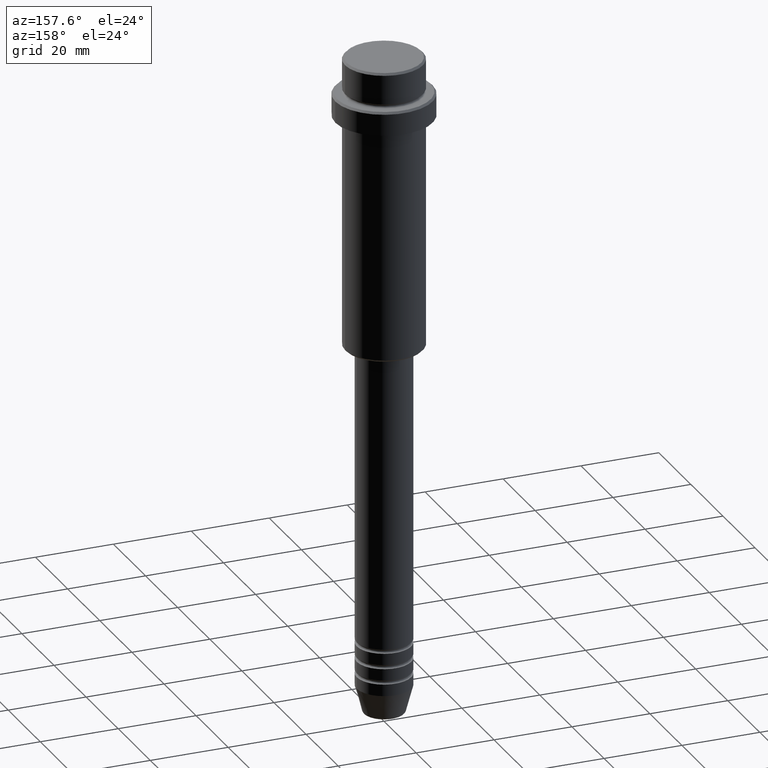
[diagram: clean part render]
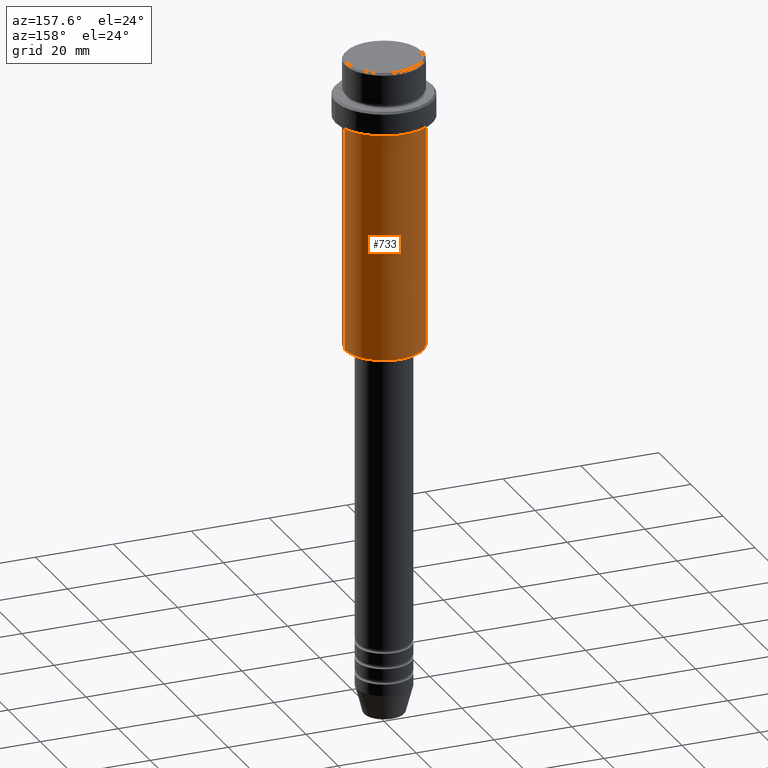
[diagram: same view with one face highlighted and labeled with its STEP entity id]
A machine part, auxiliary view. The second image highlights one B-rep face of the part: STEP entity #733.
In plain terms, the highlighted cylindrical surface (partial cylindrical patch) has radius 10 mm, axis along (-0, -0, 1).
Its self-contained STEP definition (entity closure, byte-faithful):
#65 = VERTEX_POINT ( 'NONE', #1335 ) ;
#96 = DIRECTION ( 'NONE',  ( 1.000000000000000000, 0.000000000000000000, 0.000000000000000000 ) ) ;
#112 = DIRECTION ( 'NONE',  ( 1.000000000000000000, 0.000000000000000000, 0.000000000000000000 ) ) ;
#139 = DIRECTION ( 'NONE',  ( -0.000000000000000000, -0.000000000000000000, 1.000000000000000000 ) ) ;
#174 = EDGE_CURVE ( 'NONE', #1343, #1163, #647, .T. ) ;
#216 = DIRECTION ( 'NONE',  ( -1.000000000000000000, 0.000000000000000000, 0.000000000000000000 ) ) ;
#247 = CARTESIAN_POINT ( 'NONE',  ( 9.999999999999998224, 0.000000000000000000, 0.000000000000000000 ) ) ;
#248 = ORIENTED_EDGE ( 'NONE', *, *, #1213, .F. ) ;
#275 = CARTESIAN_POINT ( 'NONE',  ( 0.000000000000000000, 0.000000000000000000, -16.00000000000000000 ) ) ;
#305 = AXIS2_PLACEMENT_3D ( 'NONE', #530, #1082, #112 ) ;
#325 = DIRECTION ( 'NONE',  ( -0.000000000000000000, -0.000000000000000000, 1.000000000000000000 ) ) ;
#333 = CIRCLE ( 'NONE', #448, 9.999999999999998224 ) ;
#348 = DIRECTION ( 'NONE',  ( -0.000000000000000000, -0.000000000000000000, 1.000000000000000000 ) ) ;
#383 = EDGE_CURVE ( 'NONE', #65, #1163, #869, .T. ) ;
#401 = DIRECTION ( 'NONE',  ( -0.000000000000000000, -0.000000000000000000, 1.000000000000000000 ) ) ;
#403 = VECTOR ( 'NONE', #139, 1000.000000000000000 ) ;
#421 = AXIS2_PLACEMENT_3D ( 'NONE', #275, #401, #96 ) ;
#443 = ORIENTED_EDGE ( 'NONE', *, *, #174, .F. ) ;
#448 = AXIS2_PLACEMENT_3D ( 'NONE', #723, #348, #216 ) ;
#463 = LINE ( 'NONE', #247, #403 ) ;
#530 = CARTESIAN_POINT ( 'NONE',  ( 0.000000000000000000, 0.000000000000000000, 0.000000000000000000 ) ) ;
#579 = VECTOR ( 'NONE', #325, 1000.000000000000000 ) ;
#596 = VERTEX_POINT ( 'NONE', #1170 ) ;
#612 = CARTESIAN_POINT ( 'NONE',  ( -9.999999999999998224, 1.224646799147353059E-15, -16.00000000000000000 ) ) ;
#647 = CIRCLE ( 'NONE', #421, 9.999999999999998224 ) ;
#658 = EDGE_LOOP ( 'NONE', ( #994, #1243, #443, #248 ) ) ;
#723 = CARTESIAN_POINT ( 'NONE',  ( 0.000000000000000000, 0.000000000000000000, -74.50000000000000000 ) ) ;
#733 = ADVANCED_FACE ( 'NONE', ( #1075 ), #1291, .T. ) ;
#869 = LINE ( 'NONE', #1078, #579 ) ;
#994 = ORIENTED_EDGE ( 'NONE', *, *, #1180, .T. ) ;
#1075 = FACE_OUTER_BOUND ( 'NONE', #658, .T. ) ;
#1078 = CARTESIAN_POINT ( 'NONE',  ( -9.999999999999998224, 1.224646799147353059E-15, 0.000000000000000000 ) ) ;
#1082 = DIRECTION ( 'NONE',  ( -0.000000000000000000, -0.000000000000000000, 1.000000000000000000 ) ) ;
#1163 = VERTEX_POINT ( 'NONE', #612 ) ;
#1170 = CARTESIAN_POINT ( 'NONE',  ( 9.999999999999998224, 0.000000000000000000, -74.50000000000000000 ) ) ;
#1180 = EDGE_CURVE ( 'NONE', #596, #65, #333, .T. ) ;
#1213 = EDGE_CURVE ( 'NONE', #596, #1343, #463, .T. ) ;
#1243 = ORIENTED_EDGE ( 'NONE', *, *, #383, .T. ) ;
#1291 = CYLINDRICAL_SURFACE ( 'NONE', #305, 9.999999999999998224 ) ;
#1335 = CARTESIAN_POINT ( 'NONE',  ( -9.999999999999998224, 1.224646799147353059E-15, -74.50000000000000000 ) ) ;
#1343 = VERTEX_POINT ( 'NONE', #1362 ) ;
#1362 = CARTESIAN_POINT ( 'NONE',  ( 9.999999999999998224, 0.000000000000000000, -16.00000000000000000 ) ) ;